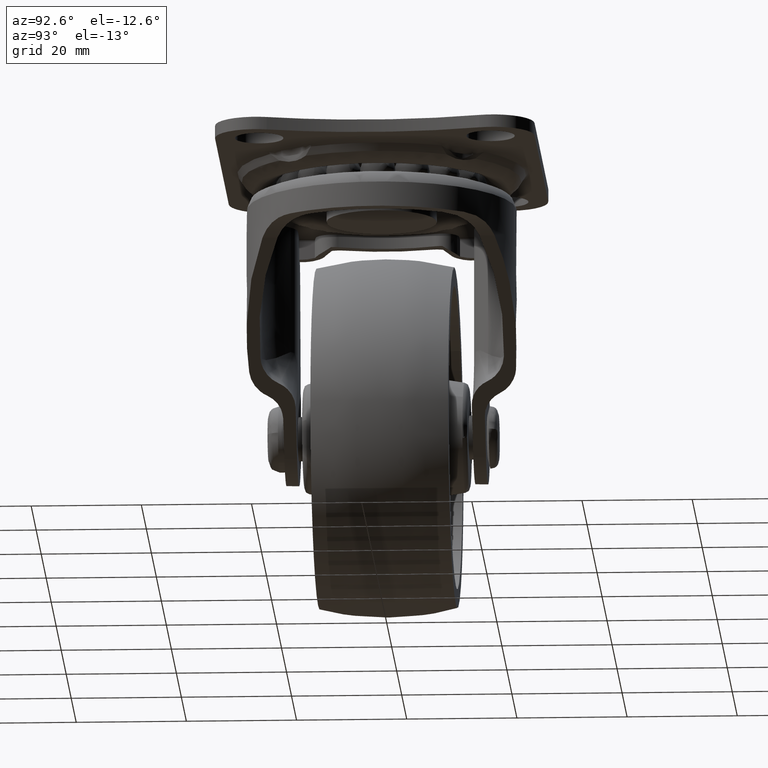
[diagram: clean part render]
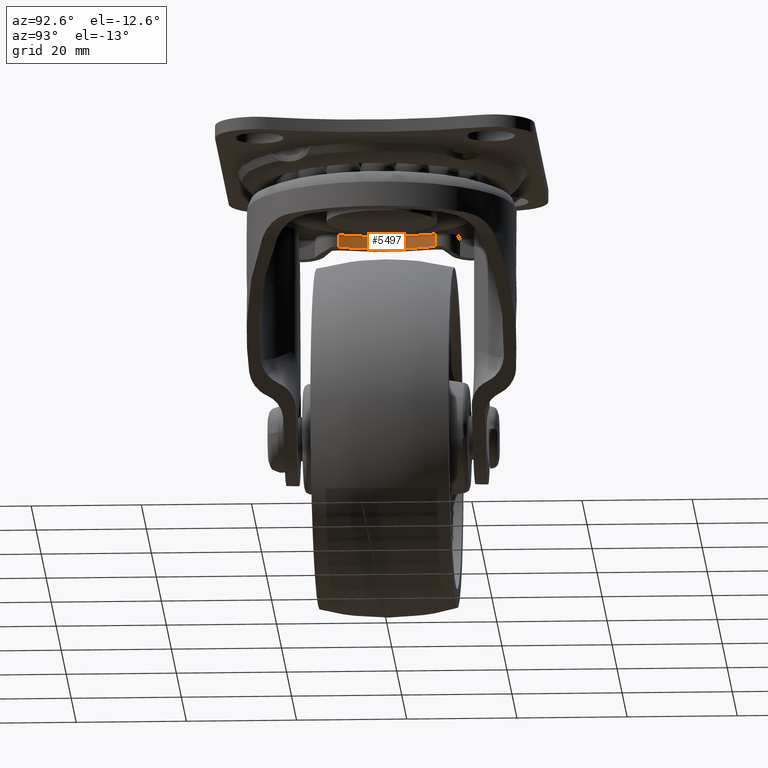
[diagram: same view with one face highlighted and labeled with its STEP entity id]
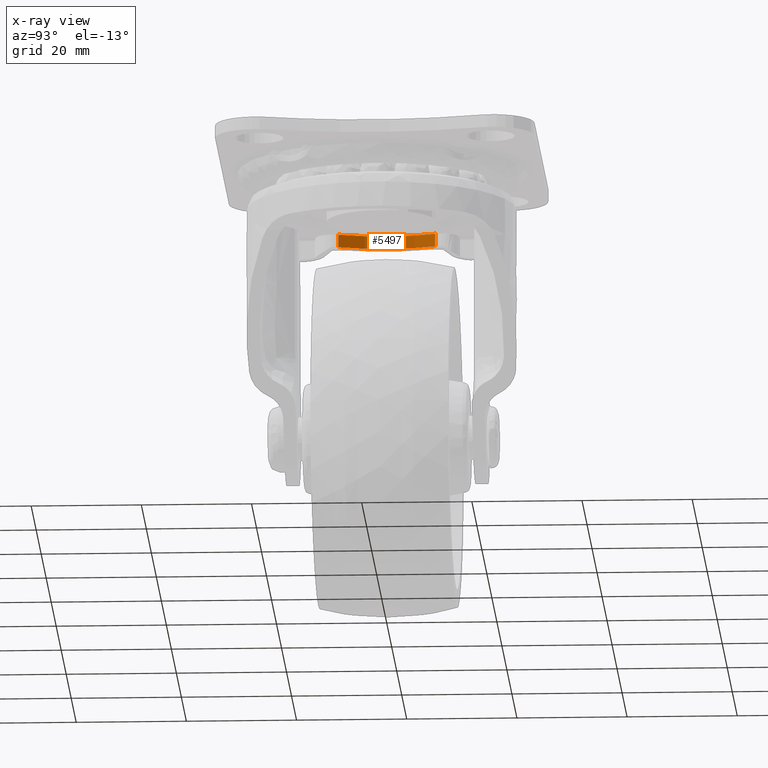
[diagram: x-ray of the same camera — body ghosted, the highlighted face saturated]
A machine part, auxiliary view. The second image highlights one B-rep face of the part: STEP entity #5497.
The next image is the same camera in x-ray: the body ghosted, the highlighted face saturated — about 0% of this face is hidden behind the body in this view.
In plain terms, the highlighted face is a freeform B-spline surface patch.
Its self-contained STEP definition (entity closure, byte-faithful):
#1142=CARTESIAN_POINT('',(-20.386639438918650,8.787771753267579,-9.700002000000000));
#1143=VERTEX_POINT('',#1142);
#1157=CARTESIAN_POINT('',(-20.386639438918650,8.787771753267579,-12.022054000000001));
#1158=VERTEX_POINT('',#1157);
#1159=CARTESIAN_POINT('',(-20.386639438918650,8.787771753267579,-12.022054000000001));
#1160=CARTESIAN_POINT('',(-20.386639438918650,8.787771753267579,-9.700002000000000));
#1161=QUASI_UNIFORM_CURVE('',1,(#1159,#1160),.UNSPECIFIED.,.F.,.U.);
#1162=EDGE_CURVE('',#1158,#1143,#1161,.T.);
#1194=CARTESIAN_POINT('',(-20.386638703793949,-8.787773458673810,-12.022054000000001));
#1195=VERTEX_POINT('',#1194);
#1211=CARTESIAN_POINT('',(-20.386638703793949,-8.787773458673810,-9.700002000000000));
#1212=VERTEX_POINT('',#1211);
#1213=CARTESIAN_POINT('',(-20.386638703793949,-8.787773458673810,-9.700002000000000));
#1214=CARTESIAN_POINT('',(-20.386638703793949,-8.787773458673810,-12.022054000000001));
#1215=QUASI_UNIFORM_CURVE('',1,(#1213,#1214),.UNSPECIFIED.,.F.,.U.);
#1216=EDGE_CURVE('',#1212,#1195,#1215,.T.);
#5210=CARTESIAN_POINT('',(-20.386638703793921,-8.787773458673801,-12.022054000000001));
#5211=CARTESIAN_POINT('',(-24.174656659932307,-0.000001011142893,-12.022053999999999));
#5212=CARTESIAN_POINT('',(-20.386639438918639,8.787771753267558,-12.022054000000001));
#5220=(BOUNDED_CURVE()B_SPLINE_CURVE(2,(#5210,#5211,#5212),.UNSPECIFIED.,.F.,.U.)CURVE()GEOMETRIC_REPRESENTATION_ITEM()QUASI_UNIFORM_CURVE()RATIONAL_B_SPLINE_CURVE((1.0,0.918317075286320,1.0))REPRESENTATION_ITEM(''));
#5221=EDGE_CURVE('',#1195,#1158,#5220,.T.);
#5465=CARTESIAN_POINT('',(-20.149615620308769,-9.318422095709575,-12.080105300000000));
#5466=CARTESIAN_POINT('',(-20.149615620308769,-9.318422095709575,-9.640499417499997));
#5467=CARTESIAN_POINT('',(-24.534483134281512,0.163161164315724,-12.080105300000005));
#5468=CARTESIAN_POINT('',(-24.534483134281512,0.163161164315724,-9.640499417499999));
#5469=CARTESIAN_POINT('',(-20.023898679481796,9.585587184614562,-12.080105300000001));
#5470=CARTESIAN_POINT('',(-20.023898679481796,9.585587184614562,-9.640499417499996));
#5478=(BOUNDED_SURFACE()B_SPLINE_SURFACE(1,2,((#5465,#5467,#5469),(#5466,#5468,#5470)),.UNSPECIFIED.,.F.,.F.,.U.)B_SPLINE_SURFACE_WITH_KNOTS((2,2),(3,3),(0.0,2.439605882500008),(0.0,19.848943500886911),.UNSPECIFIED.)GEOMETRIC_REPRESENTATION_ITEM()RATIONAL_B_SPLINE_SURFACE(((1.0,0.903769649659230,0.997660068339954),(1.0,0.903769649659230,0.997660068339954)))REPRESENTATION_ITEM('')SURFACE());
#5479=CARTESIAN_POINT('',(-20.386638703793921,-8.787773458673799,-9.700002000000000));
#5480=CARTESIAN_POINT('',(-24.174656659932307,-0.000001011142885,-9.700002000000000));
#5481=CARTESIAN_POINT('',(-20.386639438918628,8.787771753267569,-9.700002000000000));
#5489=(BOUNDED_CURVE()B_SPLINE_CURVE(2,(#5479,#5480,#5481),.UNSPECIFIED.,.F.,.U.)CURVE()GEOMETRIC_REPRESENTATION_ITEM()QUASI_UNIFORM_CURVE()RATIONAL_B_SPLINE_CURVE((1.0,0.918317075286320,1.0))REPRESENTATION_ITEM(''));
#5490=EDGE_CURVE('',#1212,#1143,#5489,.T.);
#5491=ORIENTED_EDGE('',*,*,#5490,.F.);
#5492=ORIENTED_EDGE('',*,*,#1216,.T.);
#5493=ORIENTED_EDGE('',*,*,#5221,.T.);
#5494=ORIENTED_EDGE('',*,*,#1162,.T.);
#5495=EDGE_LOOP('',(#5491,#5492,#5493,#5494));
#5496=FACE_OUTER_BOUND('',#5495,.T.);
#5497=ADVANCED_FACE('',(#5496),#5478,.F.);